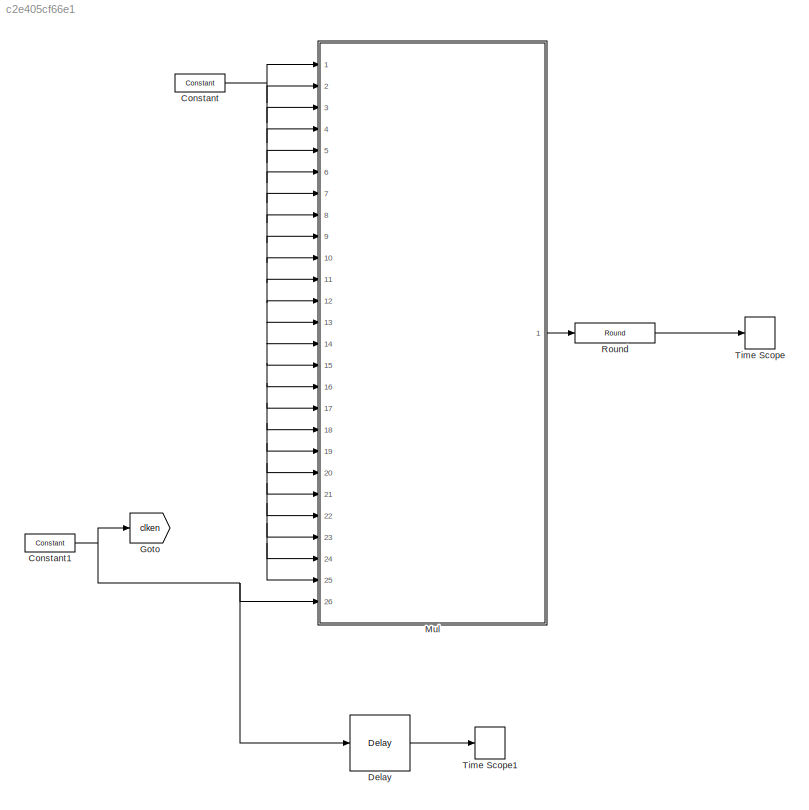
MODEL slx_c2e405cf66e1
KIND model
CONFIG AbsTol = auto
CONFIG FixedStep = auto
CONFIG InitFcn = %% DSPBuilder Start\nalt_dspbuilder_update_model(bdroot)\n%% DSPBuilder End\n
CONFIG MaxStep = auto
CONFIG MinStep = auto
CONFIG RelTol = 1e-3
CONFIG SampleTimeConstraint = Unconstrained
CONFIG Solver = ode45
CONFIG SolverMode = Auto
CONFIG SolverName = ode45
CONFIG StartTime = 0.0
CONFIG StopTime = 25
BLOCK [Reference] Constant  REF=allblocks_alteradspbuilder2/Constant
  BusType = Unsigned Integer
  Ports = [0, 1]
  SourceBlock = allblocks_alteradspbuilder2/Constant
  SourceType = Constant AlteraBlockset
  SpecifyClock = off
  allowFloatingPointOverride = on
  bwl = 8
  bwr = 0
  logFile = <userpath>\Desktop\final_sift_fpga\tb_test1\test1_Constant.fixedpointlog
  logOutputs = off
  mask_cst = 1
  roundMode = Truncate
  satMode = Wrap
BLOCK [Reference] Constant1  REF=allblocks_alteradspbuilder2/Constant
  BusType = Single Bit
  Ports = [0, 1]
  SourceBlock = allblocks_alteradspbuilder2/Constant
  SourceType = Constant AlteraBlockset
  SpecifyClock = off
  allowFloatingPointOverride = on
  bwl = 8
  bwr = 0
  logFile = <userpath>\Desktop\final_sift_fpga\tb_test1\test1_Constant1.fixedpointlog
  logOutputs = off
  mask_cst = 1
  roundMode = Truncate
  satMode = Wrap
BLOCK [Reference] Delay  REF=allblocks_alteradspbuilder2/Delay
  ClockPhase = 1
  Ports = [1, 1]
  SourceBlock = allblocks_alteradspbuilder2/Delay
  SourceType = Delay AlteraBlockset
  allowFloatingPointOverride = on
  logFile = <userpath>\Desktop\final_sift_fpga\tb_test1\test1_Delay.fixedpointlog
  logOutputs = off
  pipeline = 1
  pipeline_display = 1
  reset_value = 1
  use_ena = off
  use_init = off
  use_sclr = off
BLOCK [Goto] Goto
  GotoTag = clken
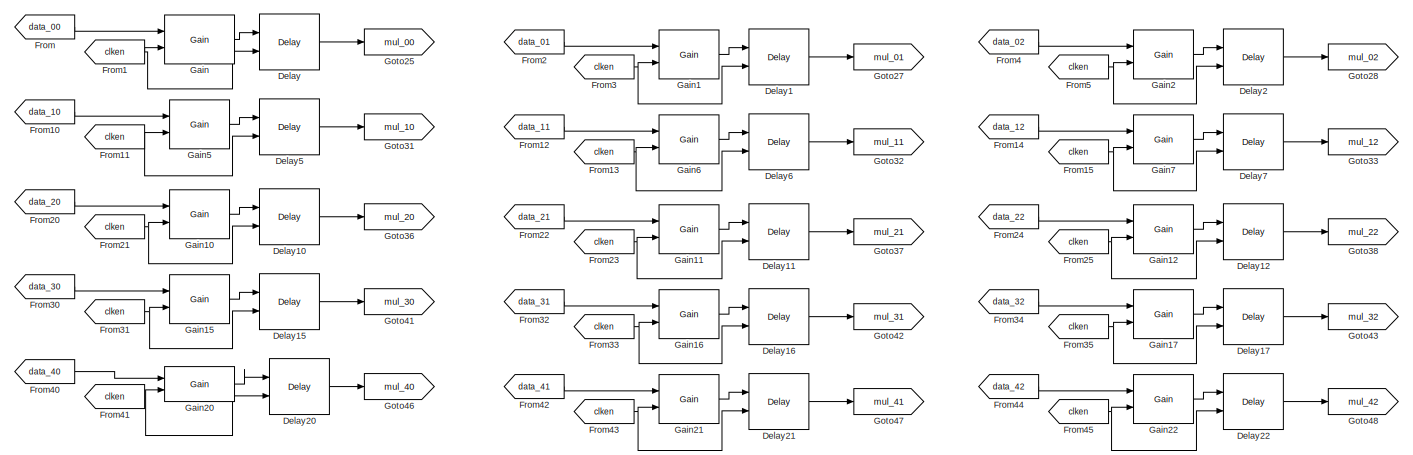
[diagram: Mul - part 1/4, top center region]
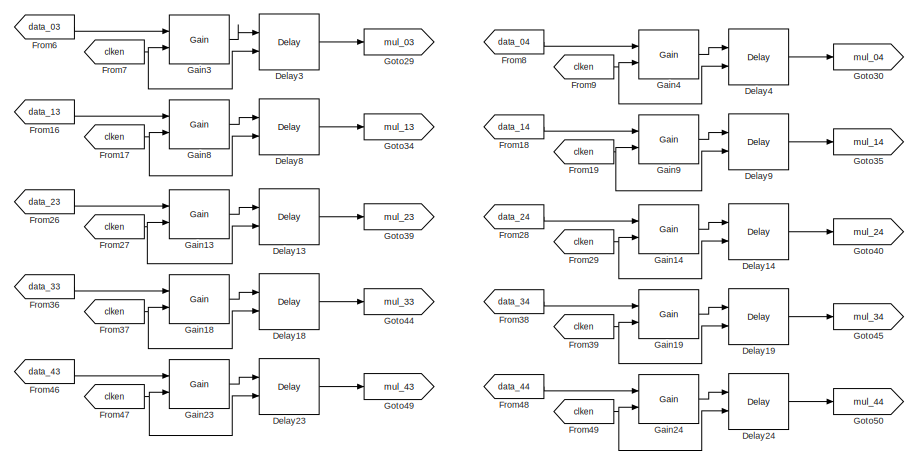
[diagram: Mul - part 2/4, top right region]
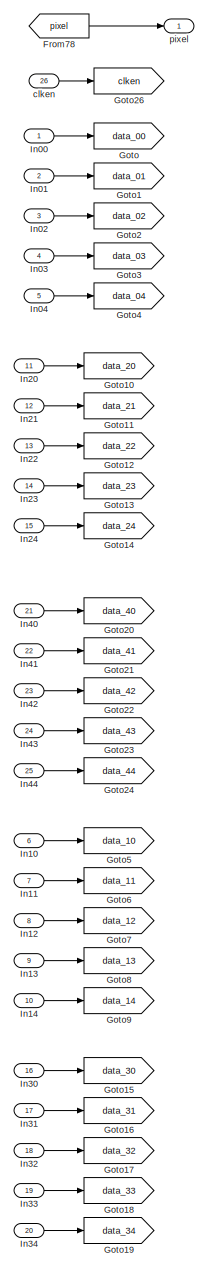
[diagram: Mul - part 3/4, left side, full height]
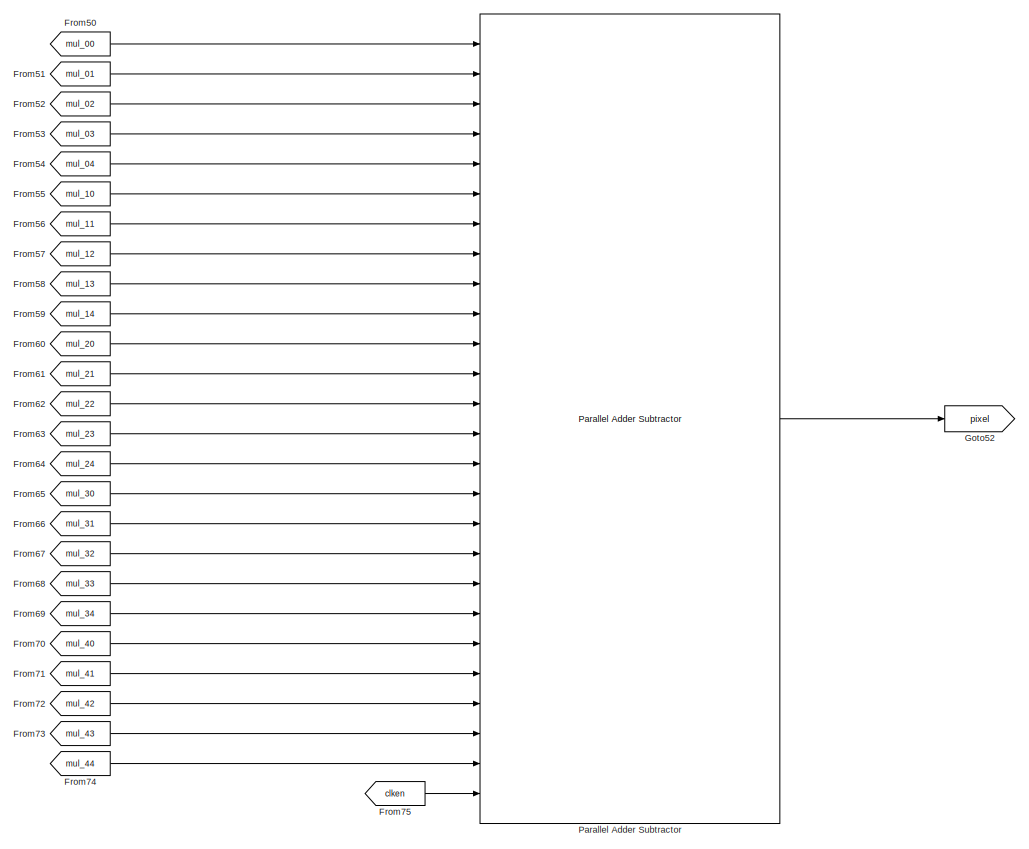
[diagram: Mul - part 4/4, bottom left region]
BLOCK [SubSystem] Mul
  Ports = [26, 1]
  RequestExecContextInheritance = off
BLOCK [Reference] Mul/Delay  REF=allblocks_alteradspbuilder2/Delay
  ClockPhase = 1
  Ports = [2, 1]
  SourceBlock = allblocks_alteradspbuilder2/Delay
  SourceType = Delay AlteraBlockset
  allowFloatingPointOverride = on
  logFile = <userpath>\Desktop\final_sift_fpga\tb_test1\test1_Mul_Delay.fixedpointlog
  logOutputs = off
  pipeline = 1
  pipeline_display = 1
  reset_value = 1
  use_ena = on
  use_init = off
  use_sclr = off
BLOCK [Reference] Mul/Delay1  REF=allblocks_alteradspbuilder2/Delay
  ClockPhase = 1
  Ports = [2, 1]
  SourceBlock = allblocks_alteradspbuilder2/Delay
  SourceType = Delay AlteraBlockset
  allowFloatingPointOverride = on
  logFile = <userpath>\Desktop\final_sift_fpga\tb_test1\test1_Mul_Delay1.fixedpointlog
  logOutputs = off
  pipeline = 1
  pipeline_display = 1
  reset_value = 1
  use_ena = on
  use_init = off
  use_sclr = off
BLOCK [Reference] Mul/Delay10  REF=allblocks_alteradspbuilder2/Delay
  ClockPhase = 1
  Ports = [2, 1]
  SourceBlock = allblocks_alteradspbuilder2/Delay
  SourceType = Delay AlteraBlockset
  allowFloatingPointOverride = on
  logFile = <userpath>\Desktop\final_sift_fpga\tb_test1\test1_Mul_Delay10.fixedpointlog
  logOutputs = off
  pipeline = 1
  pipeline_display = 1
  reset_value = 1
  use_ena = on
  use_init = off
  use_sclr = off
BLOCK [Reference] Mul/Delay11  REF=allblocks_alteradspbuilder2/Delay
  ClockPhase = 1
  Ports = [2, 1]
  SourceBlock = allblocks_alteradspbuilder2/Delay
  SourceType = Delay AlteraBlockset
  allowFloatingPointOverride = on
  logFile = <userpath>\Desktop\final_sift_fpga\tb_test1\test1_Mul_Delay11.fixedpointlog
  logOutputs = off
  pipeline = 1
  pipeline_display = 1
  reset_value = 1
  use_ena = on
  use_init = off
  use_sclr = off
BLOCK [Reference] Mul/Delay12  REF=allblocks_alteradspbuilder2/Delay
  ClockPhase = 1
  Ports = [2, 1]
  SourceBlock = allblocks_alteradspbuilder2/Delay
  SourceType = Delay AlteraBlockset
  allowFloatingPointOverride = on
  logFile = <userpath>\Desktop\final_sift_fpga\tb_test1\test1_Mul_Delay12.fixedpointlog
  logOutputs = off
  pipeline = 1
  pipeline_display = 1
  reset_value = 1
  use_ena = on
  use_init = off
  use_sclr = off
BLOCK [Reference] Mul/Delay13  REF=allblocks_alteradspbuilder2/Delay
  ClockPhase = 1
  Ports = [2, 1]
  SourceBlock = allblocks_alteradspbuilder2/Delay
  SourceType = Delay AlteraBlockset
  allowFloatingPointOverride = on
  logFile = <userpath>\Desktop\final_sift_fpga\tb_test1\test1_Mul_Delay13.fixedpointlog
  logOutputs = off
  pipeline = 1
  pipeline_display = 1
  reset_value = 1
  use_ena = on
  use_init = off
  use_sclr = off
BLOCK [Reference] Mul/Delay14  REF=allblocks_alteradspbuilder2/Delay
  ClockPhase = 1
  Ports = [2, 1]
  SourceBlock = allblocks_alteradspbuilder2/Delay
  SourceType = Delay AlteraBlockset
  allowFloatingPointOverride = on
  logFile = <userpath>\Desktop\final_sift_fpga\tb_test1\test1_Mul_Delay14.fixedpointlog
  logOutputs = off
  pipeline = 1
  pipeline_display = 1
  reset_value = 1
  use_ena = on
  use_init = off
  use_sclr = off
BLOCK [Reference] Mul/Delay15  REF=allblocks_alteradspbuilder2/Delay
  ClockPhase = 1
  Ports = [2, 1]
  SourceBlock = allblocks_alteradspbuilder2/Delay
  SourceType = Delay AlteraBlockset
  allowFloatingPointOverride = on
  logFile = <userpath>\Desktop\final_sift_fpga\tb_test1\test1_Mul_Delay15.fixedpointlog
  logOutputs = off
  pipeline = 1
  pipeline_display = 1
  reset_value = 1
  use_ena = on
  use_init = off
  use_sclr = off
BLOCK [Reference] Mul/Delay16  REF=allblocks_alteradspbuilder2/Delay
  ClockPhase = 1
  Ports = [2, 1]
  SourceBlock = allblocks_alteradspbuilder2/Delay
  SourceType = Delay AlteraBlockset
  allowFloatingPointOverride = on
  logFile = <userpath>\Desktop\final_sift_fpga\tb_test1\test1_Mul_Delay16.fixedpointlog
  logOutputs = off
  pipeline = 1
  pipeline_display = 1
  reset_value = 1
  use_ena = on
  use_init = off
  use_sclr = off
BLOCK [Reference] Mul/Delay17  REF=allblocks_alteradspbuilder2/Delay
  ClockPhase = 1
  Ports = [2, 1]
  SourceBlock = allblocks_alteradspbuilder2/Delay
  SourceType = Delay AlteraBlockset
  allowFloatingPointOverride = on
  logFile = <userpath>\Desktop\final_sift_fpga\tb_test1\test1_Mul_Delay17.fixedpointlog
  logOutputs = off
  pipeline = 1
  pipeline_display = 1
  reset_value = 1
  use_ena = on
  use_init = off
  use_sclr = off
BLOCK [Reference] Mul/Delay18  REF=allblocks_alteradspbuilder2/Delay
  ClockPhase = 1
  Ports = [2, 1]
  SourceBlock = allblocks_alteradspbuilder2/Delay
  SourceType = Delay AlteraBlockset
  allowFloatingPointOverride = on
  logFile = <userpath>\Desktop\final_sift_fpga\tb_test1\test1_Mul_Delay18.fixedpointlog
  logOutputs = off
  pipeline = 1
  pipeline_display = 1
  reset_value = 1
  use_ena = on
  use_init = off
  use_sclr = off
BLOCK [Reference] Mul/Delay19  REF=allblocks_alteradspbuilder2/Delay
  ClockPhase = 1
  Ports = [2, 1]
  SourceBlock = allblocks_alteradspbuilder2/Delay
  SourceType = Delay AlteraBlockset
  allowFloatingPointOverride = on
  logFile = <userpath>\Desktop\final_sift_fpga\tb_test1\test1_Mul_Delay19.fixedpointlog
  logOutputs = off
  pipeline = 1
  pipeline_display = 1
  reset_value = 1
  use_ena = on
  use_init = off
  use_sclr = off
BLOCK [Reference] Mul/Delay2  REF=allblocks_alteradspbuilder2/Delay
  ClockPhase = 1
  Ports = [2, 1]
  SourceBlock = allblocks_alteradspbuilder2/Delay
  SourceType = Delay AlteraBlockset
  allowFloatingPointOverride = on
  logFile = <userpath>\Desktop\final_sift_fpga\tb_test1\test1_Mul_Delay2.fixedpointlog
  logOutputs = off
  pipeline = 1
  pipeline_display = 1
  reset_value = 1
  use_ena = on
  use_init = off
  use_sclr = off
BLOCK [Reference] Mul/Delay20  REF=allblocks_alteradspbuilder2/Delay
  ClockPhase = 1
  Ports = [2, 1]
  SourceBlock = allblocks_alteradspbuilder2/Delay
  SourceType = Delay AlteraBlockset
  allowFloatingPointOverride = on
  logFile = <userpath>\Desktop\final_sift_fpga\tb_test1\test1_Mul_Delay20.fixedpointlog
  logOutputs = off
  pipeline = 1
  pipeline_display = 1
  reset_value = 1
  use_ena = on
  use_init = off
  use_sclr = off
BLOCK [Reference] Mul/Delay21  REF=allblocks_alteradspbuilder2/Delay
  ClockPhase = 1
  Ports = [2, 1]
  SourceBlock = allblocks_alteradspbuilder2/Delay
  SourceType = Delay AlteraBlockset
  allowFloatingPointOverride = on
  logFile = <userpath>\Desktop\final_sift_fpga\tb_test1\test1_Mul_Delay21.fixedpointlog
  logOutputs = off
  pipeline = 1
  pipeline_display = 1
  reset_value = 1
  use_ena = on
  use_init = off
  use_sclr = off
BLOCK [Reference] Mul/Delay22  REF=allblocks_alteradspbuilder2/Delay
  ClockPhase = 1
  Ports = [2, 1]
  SourceBlock = allblocks_alteradspbuilder2/Delay
  SourceType = Delay AlteraBlockset
  allowFloatingPointOverride = on
  logFile = <userpath>\Desktop\final_sift_fpga\tb_test1\test1_Mul_Delay22.fixedpointlog
  logOutputs = off
  pipeline = 1
  pipeline_display = 1
  reset_value = 1
  use_ena = on
  use_init = off
  use_sclr = off
BLOCK [Reference] Mul/Delay23  REF=allblocks_alteradspbuilder2/Delay
  ClockPhase = 1
  Ports = [2, 1]
  SourceBlock = allblocks_alteradspbuilder2/Delay
  SourceType = Delay AlteraBlockset
  allowFloatingPointOverride = on
  logFile = <userpath>\Desktop\final_sift_fpga\tb_test1\test1_Mul_Delay23.fixedpointlog
  logOutputs = off
  pipeline = 1
  pipeline_display = 1
  reset_value = 1
  use_ena = on
  use_init = off
  use_sclr = off
BLOCK [Reference] Mul/Delay24  REF=allblocks_alteradspbuilder2/Delay
  ClockPhase = 1
  Ports = [2, 1]
  SourceBlock = allblocks_alteradspbuilder2/Delay
  SourceType = Delay AlteraBlockset
  allowFloatingPointOverride = on
  logFile = <userpath>\Desktop\final_sift_fpga\tb_test1\test1_Mul_Delay24.fixedpointlog
  logOutputs = off
  pipeline = 1
  pipeline_display = 1
  reset_value = 1
  use_ena = on
  use_init = off
  use_sclr = off
BLOCK [Reference] Mul/Delay3  REF=allblocks_alteradspbuilder2/Delay
  ClockPhase = 1
  Ports = [2, 1]
  SourceBlock = allblocks_alteradspbuilder2/Delay
  SourceType = Delay AlteraBlockset
  allowFloatingPointOverride = on
  logFile = <userpath>\Desktop\final_sift_fpga\tb_test1\test1_Mul_Delay3.fixedpointlog
  logOutputs = off
  pipeline = 1
  pipeline_display = 1
  reset_value = 1
  use_ena = on
  use_init = off
  use_sclr = off
BLOCK [Reference] Mul/Delay4  REF=allblocks_alteradspbuilder2/Delay
  ClockPhase = 1
  Ports = [2, 1]
  SourceBlock = allblocks_alteradspbuilder2/Delay
  SourceType = Delay AlteraBlockset
  allowFloatingPointOverride = on
  logFile = <userpath>\Desktop\final_sift_fpga\tb_test1\test1_Mul_Delay4.fixedpointlog
  logOutputs = off
  pipeline = 1
  pipeline_display = 1
  reset_value = 1
  use_ena = on
  use_init = off
  use_sclr = off
BLOCK [Reference] Mul/Delay5  REF=allblocks_alteradspbuilder2/Delay
  ClockPhase = 1
  Ports = [2, 1]
  SourceBlock = allblocks_alteradspbuilder2/Delay
  SourceType = Delay AlteraBlockset
  allowFloatingPointOverride = on
  logFile = <userpath>\Desktop\final_sift_fpga\tb_test1\test1_Mul_Delay5.fixedpointlog
  logOutputs = off
  pipeline = 1
  pipeline_display = 1
  reset_value = 1
  use_ena = on
  use_init = off
  use_sclr = off
BLOCK [Reference] Mul/Delay6  REF=allblocks_alteradspbuilder2/Delay
  ClockPhase = 1
  Ports = [2, 1]
  SourceBlock = allblocks_alteradspbuilder2/Delay
  SourceType = Delay AlteraBlockset
  allowFloatingPointOverride = on
  logFile = <userpath>\Desktop\final_sift_fpga\tb_test1\test1_Mul_Delay6.fixedpointlog
  logOutputs = off
  pipeline = 1
  pipeline_display = 1
  reset_value = 1
  use_ena = on
  use_init = off
  use_sclr = off
BLOCK [Reference] Mul/Delay7  REF=allblocks_alteradspbuilder2/Delay
  ClockPhase = 1
  Ports = [2, 1]
  SourceBlock = allblocks_alteradspbuilder2/Delay
  SourceType = Delay AlteraBlockset
  allowFloatingPointOverride = on
  logFile = <userpath>\Desktop\final_sift_fpga\tb_test1\test1_Mul_Delay7.fixedpointlog
  logOutputs = off
  pipeline = 1
  pipeline_display = 1
  reset_value = 1
  use_ena = on
  use_init = off
  use_sclr = off
BLOCK [Reference] Mul/Delay8  REF=allblocks_alteradspbuilder2/Delay
  ClockPhase = 1
  Ports = [2, 1]
  SourceBlock = allblocks_alteradspbuilder2/Delay
  SourceType = Delay AlteraBlockset
  allowFloatingPointOverride = on
  logFile = <userpath>\Desktop\final_sift_fpga\tb_test1\test1_Mul_Delay8.fixedpointlog
  logOutputs = off
  pipeline = 1
  pipeline_display = 1
  reset_value = 1
  use_ena = on
  use_init = off
  use_sclr = off
BLOCK [Reference] Mul/Delay9  REF=allblocks_alteradspbuilder2/Delay
  ClockPhase = 1
  Ports = [2, 1]
  SourceBlock = allblocks_alteradspbuilder2/Delay
  SourceType = Delay AlteraBlockset
  allowFloatingPointOverride = on
  logFile = <userpath>\Desktop\final_sift_fpga\tb_test1\test1_Mul_Delay9.fixedpointlog
  logOutputs = off
  pipeline = 1
  pipeline_display = 1
  reset_value = 1
  use_ena = on
  use_init = off
  use_sclr = off
BLOCK [From] Mul/From
  GotoTag = data_00
BLOCK [From] Mul/From1
  GotoTag = clken
BLOCK [From] Mul/From10
  GotoTag = data_10
BLOCK [From] Mul/From11
  GotoTag = clken
BLOCK [From] Mul/From12
  GotoTag = data_11
BLOCK [From] Mul/From13
  GotoTag = clken
BLOCK [From] Mul/From14
  GotoTag = data_12
BLOCK [From] Mul/From15
  GotoTag = clken
BLOCK [From] Mul/From16
  GotoTag = data_13
BLOCK [From] Mul/From17
  GotoTag = clken
BLOCK [From] Mul/From18
  GotoTag = data_14
BLOCK [From] Mul/From19
  GotoTag = clken
BLOCK [From] Mul/From2
  GotoTag = data_01
BLOCK [From] Mul/From20
  GotoTag = data_20
BLOCK [From] Mul/From21
  GotoTag = clken
BLOCK [From] Mul/From22
  GotoTag = data_21
BLOCK [From] Mul/From23
  GotoTag = clken
BLOCK [From] Mul/From24
  GotoTag = data_22
BLOCK [From] Mul/From25
  GotoTag = clken
BLOCK [From] Mul/From26
  GotoTag = data_23
BLOCK [From] Mul/From27
  GotoTag = clken
BLOCK [From] Mul/From28
  GotoTag = data_24
BLOCK [From] Mul/From29
  GotoTag = clken
BLOCK [From] Mul/From3
  GotoTag = clken
BLOCK [From] Mul/From30
  GotoTag = data_30
BLOCK [From] Mul/From31
  GotoTag = clken
BLOCK [From] Mul/From32
  GotoTag = data_31
BLOCK [From] Mul/From33
  GotoTag = clken
BLOCK [From] Mul/From34
  GotoTag = data_32
BLOCK [From] Mul/From35
  GotoTag = clken
BLOCK [From] Mul/From36
  GotoTag = data_33
BLOCK [From] Mul/From37
  GotoTag = clken
BLOCK [From] Mul/From38
  GotoTag = data_34
BLOCK [From] Mul/From39
  GotoTag = clken
BLOCK [From] Mul/From4
  GotoTag = data_02
BLOCK [From] Mul/From40
  GotoTag = data_40
BLOCK [From] Mul/From41
  GotoTag = clken
BLOCK [From] Mul/From42
  GotoTag = data_41
BLOCK [From] Mul/From43
  GotoTag = clken
BLOCK [From] Mul/From44
  GotoTag = data_42
BLOCK [From] Mul/From45
  GotoTag = clken
BLOCK [From] Mul/From46
  GotoTag = data_43
BLOCK [From] Mul/From47
  GotoTag = clken
BLOCK [From] Mul/From48
  GotoTag = data_44
BLOCK [From] Mul/From49
  GotoTag = clken
BLOCK [From] Mul/From5
  GotoTag = clken
BLOCK [From] Mul/From50
  GotoTag = mul_00
BLOCK [From] Mul/From51
  GotoTag = mul_01
BLOCK [From] Mul/From52
  GotoTag = mul_02
BLOCK [From] Mul/From53
  GotoTag = mul_03
BLOCK [From] Mul/From54
  GotoTag = mul_04
BLOCK [From] Mul/From55
  GotoTag = mul_10
BLOCK [From] Mul/From56
  GotoTag = mul_11
BLOCK [From] Mul/From57
  GotoTag = mul_12
BLOCK [From] Mul/From58
  GotoTag = mul_13
BLOCK [From] Mul/From59
  GotoTag = mul_14
BLOCK [From] Mul/From6
  GotoTag = data_03
BLOCK [From] Mul/From60
  GotoTag = mul_20
BLOCK [From] Mul/From61
  GotoTag = mul_21
BLOCK [From] Mul/From62
  GotoTag = mul_22
BLOCK [From] Mul/From63
  GotoTag = mul_23
BLOCK [From] Mul/From64
  GotoTag = mul_24
BLOCK [From] Mul/From65
  GotoTag = mul_30
BLOCK [From] Mul/From66
  GotoTag = mul_31
BLOCK [From] Mul/From67
  GotoTag = mul_32
BLOCK [From] Mul/From68
  GotoTag = mul_33
BLOCK [From] Mul/From69
  GotoTag = mul_34
BLOCK [From] Mul/From7
  GotoTag = clken
BLOCK [From] Mul/From70
  GotoTag = mul_40
BLOCK [From] Mul/From71
  GotoTag = mul_41
BLOCK [From] Mul/From72
  GotoTag = mul_42
BLOCK [From] Mul/From73
  GotoTag = mul_43
BLOCK [From] Mul/From74
  GotoTag = mul_44
BLOCK [From] Mul/From75
  GotoTag = clken
BLOCK [From] Mul/From78
  GotoTag = pixel
BLOCK [From] Mul/From8
  GotoTag = data_04
BLOCK [From] Mul/From9
  GotoTag = clken
BLOCK [Reference] Mul/Gain  REF=allblocks_alteradspbuilder2/Gain
  BusType = Unsigned Fractional
  MaskValue = 1
  Ports = [2, 1]
  SourceBlock = allblocks_alteradspbuilder2/Gain
  SourceType = Gain AlteraBlockset
  allowFloatingPointOverride = on
  bwl = 8
  bwr = 16
  logFile = <userpath>\Desktop\final_sift_fpga\tb_test1\test1_Mul_Gain.fixedpointlog
  logOutputs = off
  lpm = off
  pipeline = 16
  pipeline_display = 16
  use_aclr = off
  use_ena = on
  vgain = 0.0098
BLOCK [Reference] Mul/Gain1  REF=allblocks_alteradspbuilder2/Gain
  BusType = Unsigned Fractional
  MaskValue = 1
  Ports = [2, 1]
  SourceBlock = allblocks_alteradspbuilder2/Gain
  SourceType = Gain AlteraBlockset
  allowFloatingPointOverride = on
  bwl = 8
  bwr = 16
  logFile = <userpath>\Desktop\final_sift_fpga\tb_test1\test1_Mul_Gain1.fixedpointlog
  logOutputs = off
  lpm = off
  pipeline = 16
  pipeline_display = 16
  use_aclr = off
  use_ena = on
  vgain = 0.0237
BLOCK [Reference] Mul/Gain10  REF=allblocks_alteradspbuilder2/Gain
  BusType = Unsigned Fractional
  MaskValue = 1
  Ports = [2, 1]
  SourceBlock = allblocks_alteradspbuilder2/Gain
  SourceType = Gain AlteraBlockset
  allowFloatingPointOverride = on
  bwl = 8
  bwr = 16
  logFile = <userpath>\Desktop\final_sift_fpga\tb_test1\test1_Mul_Gain10.fixedpointlog
  logOutputs = off
  lpm = off
  pipeline = 16
  pipeline_display = 16
  use_aclr = off
  use_ena = on
  vgain = 0.0319
BLOCK [Reference] Mul/Gain11  REF=allblocks_alteradspbuilder2/Gain
  BusType = Unsigned Fractional
  MaskValue = 1
  Ports = [2, 1]
  SourceBlock = allblocks_alteradspbuilder2/Gain
  SourceType = Gain AlteraBlockset
  allowFloatingPointOverride = on
  bwl = 8
  bwr = 16
  logFile = <userpath>\Desktop\final_sift_fpga\tb_test1\test1_Mul_Gain11.fixedpointlog
  logOutputs = off
  lpm = off
  pipeline = 16
  pipeline_display = 16
  use_aclr = off
  use_ena = on
  vgain = 0.0774
BLOCK [Reference] Mul/Gain12  REF=allblocks_alteradspbuilder2/Gain
  BusType = Unsigned Fractional
  MaskValue = 1
  Ports = [2, 1]
  SourceBlock = allblocks_alteradspbuilder2/Gain
  SourceType = Gain AlteraBlockset
  allowFloatingPointOverride = on
  bwl = 8
  bwr = 16
  logFile = <userpath>\Desktop\final_sift_fpga\tb_test1\test1_Mul_Gain12.fixedpointlog
  logOutputs = off
  lpm = off
  pipeline = 16
  pipeline_display = 16
  use_aclr = off
  use_ena = on
  vgain = 0.1040
BLOCK [Reference] Mul/Gain13  REF=allblocks_alteradspbuilder2/Gain
  BusType = Unsigned Fractional
  MaskValue = 1
  Ports = [2, 1]
  SourceBlock = allblocks_alteradspbuilder2/Gain
  SourceType = Gain AlteraBlockset
  allowFloatingPointOverride = on
  bwl = 8
  bwr = 16
  logFile = <userpath>\Desktop\final_sift_fpga\tb_test1\test1_Mul_Gain13.fixedpointlog
  logOutputs = off
  lpm = off
  pipeline = 16
  pipeline_display = 16
  use_aclr = off
  use_ena = on
  vgain = 0.0774
BLOCK [Reference] Mul/Gain14  REF=allblocks_alteradspbuilder2/Gain
  BusType = Unsigned Fractional
  MaskValue = 1
  Ports = [2, 1]
  SourceBlock = allblocks_alteradspbuilder2/Gain
  SourceType = Gain AlteraBlockset
  allowFloatingPointOverride = on
  bwl = 8
  bwr = 16
  logFile = <userpath>\Desktop\final_sift_fpga\tb_test1\test1_Mul_Gain14.fixedpointlog
  logOutputs = off
  lpm = off
  pipeline = 16
  pipeline_display = 16
  use_aclr = off
  use_ena = on
  vgain = 0.0319
BLOCK [Reference] Mul/Gain15  REF=allblocks_alteradspbuilder2/Gain
  BusType = Unsigned Fractional
  MaskValue = 1
  Ports = [2, 1]
  SourceBlock = allblocks_alteradspbuilder2/Gain
  SourceType = Gain AlteraBlockset
  allowFloatingPointOverride = on
  bwl = 8
  bwr = 16
  logFile = <userpath>\Desktop\final_sift_fpga\tb_test1\test1_Mul_Gain15.fixedpointlog
  logOutputs = off
  lpm = off
  pipeline = 16
  pipeline_display = 16
  use_aclr = off
  use_ena = on
  vgain = 0.0237
BLOCK [Reference] Mul/Gain16  REF=allblocks_alteradspbuilder2/Gain
  BusType = Unsigned Fractional
  MaskValue = 1
  Ports = [2, 1]
  SourceBlock = allblocks_alteradspbuilder2/Gain
  SourceType = Gain AlteraBlockset
  allowFloatingPointOverride = on
  bwl = 8
  bwr = 16
  logFile = <userpath>\Desktop\final_sift_fpga\tb_test1\test1_Mul_Gain16.fixedpointlog
  logOutputs = off
  lpm = off
  pipeline = 16
  pipeline_display = 16
  use_aclr = off
  use_ena = on
  vgain = 0.0576
BLOCK [Reference] Mul/Gain17  REF=allblocks_alteradspbuilder2/Gain
  BusType = Unsigned Fractional
  MaskValue = 1
  Ports = [2, 1]
  SourceBlock = allblocks_alteradspbuilder2/Gain
  SourceType = Gain AlteraBlockset
  allowFloatingPointOverride = on
  bwl = 8
  bwr = 16
  logFile = <userpath>\Desktop\final_sift_fpga\tb_test1\test1_Mul_Gain17.fixedpointlog
  logOutputs = off
  lpm = off
  pipeline = 16
  pipeline_display = 16
  use_aclr = off
  use_ena = on
  vgain = 0.0774
BLOCK [Reference] Mul/Gain18  REF=allblocks_alteradspbuilder2/Gain
  BusType = Unsigned Fractional
  MaskValue = 1
  Ports = [2, 1]
  SourceBlock = allblocks_alteradspbuilder2/Gain
  SourceType = Gain AlteraBlockset
  allowFloatingPointOverride = on
  bwl = 8
  bwr = 16
  logFile = <userpath>\Desktop\final_sift_fpga\tb_test1\test1_Mul_Gain18.fixedpointlog
  logOutputs = off
  lpm = off
  pipeline = 16
  pipeline_display = 16
  use_aclr = off
  use_ena = on
  vgain = 0.0576
BLOCK [Reference] Mul/Gain19  REF=allblocks_alteradspbuilder2/Gain
  BusType = Unsigned Fractional
  MaskValue = 1
  Ports = [2, 1]
  SourceBlock = allblocks_alteradspbuilder2/Gain
  SourceType = Gain AlteraBlockset
  allowFloatingPointOverride = on
  bwl = 8
  bwr = 16
  logFile = <userpath>\Desktop\final_sift_fpga\tb_test1\test1_Mul_Gain19.fixedpointlog
  logOutputs = off
  lpm = off
  pipeline = 16
  pipeline_display = 16
  use_aclr = off
  use_ena = on
  vgain = 0.0237
BLOCK [Reference] Mul/Gain2  REF=allblocks_alteradspbuilder2/Gain
  BusType = Unsigned Fractional
  MaskValue = 1
  Ports = [2, 1]
  SourceBlock = allblocks_alteradspbuilder2/Gain
  SourceType = Gain AlteraBlockset
  allowFloatingPointOverride = on
  bwl = 8
  bwr = 16
  logFile = <userpath>\Desktop\final_sift_fpga\tb_test1\test1_Mul_Gain2.fixedpointlog
  logOutputs = off
  lpm = off
  pipeline = 16
  pipeline_display = 16
  use_aclr = off
  use_ena = on
  vgain = 0.0319
BLOCK [Reference] Mul/Gain20  REF=allblocks_alteradspbuilder2/Gain
  BusType = Unsigned Fractional
  MaskValue = 1
  Ports = [2, 1]
  SourceBlock = allblocks_alteradspbuilder2/Gain
  SourceType = Gain AlteraBlockset
  allowFloatingPointOverride = on
  bwl = 8
  bwr = 16
  logFile = <userpath>\Desktop\final_sift_fpga\tb_test1\test1_Mul_Gain20.fixedpointlog
  logOutputs = off
  lpm = off
  pipeline = 16
  pipeline_display = 16
  use_aclr = off
  use_ena = on
  vgain = 0.0098
BLOCK [Reference] Mul/Gain21  REF=allblocks_alteradspbuilder2/Gain
  BusType = Unsigned Fractional
  MaskValue = 1
  Ports = [2, 1]
  SourceBlock = allblocks_alteradspbuilder2/Gain
  SourceType = Gain AlteraBlockset
  allowFloatingPointOverride = on
  bwl = 8
  bwr = 16
  logFile = <userpath>\Desktop\final_sift_fpga\tb_test1\test1_Mul_Gain21.fixedpointlog
  logOutputs = off
  lpm = off
  pipeline = 16
  pipeline_display = 16
  use_aclr = off
  use_ena = on
  vgain = 0.0237
BLOCK [Reference] Mul/Gain22  REF=allblocks_alteradspbuilder2/Gain
  BusType = Unsigned Fractional
  MaskValue = 1
  Ports = [2, 1]
  SourceBlock = allblocks_alteradspbuilder2/Gain
  SourceType = Gain AlteraBlockset
  allowFloatingPointOverride = on
  bwl = 8
  bwr = 16
  logFile = <userpath>\Desktop\final_sift_fpga\tb_test1\test1_Mul_Gain22.fixedpointlog
  logOutputs = off
  lpm = off
  pipeline = 16
  pipeline_display = 16
  use_aclr = off
  use_ena = on
  vgain = 0.0319
BLOCK [Reference] Mul/Gain23  REF=allblocks_alteradspbuilder2/Gain
  BusType = Unsigned Fractional
  MaskValue = 1
  Ports = [2, 1]
  SourceBlock = allblocks_alteradspbuilder2/Gain
  SourceType = Gain AlteraBlockset
  allowFloatingPointOverride = on
  bwl = 8
  bwr = 16
  logFile = <userpath>\Desktop\final_sift_fpga\tb_test1\test1_Mul_Gain23.fixedpointlog
  logOutputs = off
  lpm = off
  pipeline = 16
  pipeline_display = 16
  use_aclr = off
  use_ena = on
  vgain = 0.0237
BLOCK [Reference] Mul/Gain24  REF=allblocks_alteradspbuilder2/Gain
  BusType = Unsigned Fractional
  MaskValue = 1
  Ports = [2, 1]
  SourceBlock = allblocks_alteradspbuilder2/Gain
  SourceType = Gain AlteraBlockset
  allowFloatingPointOverride = on
  bwl = 8
  bwr = 16
  logFile = <userpath>\Desktop\final_sift_fpga\tb_test1\test1_Mul_Gain24.fixedpointlog
  logOutputs = off
  lpm = off
  pipeline = 16
  pipeline_display = 16
  use_aclr = off
  use_ena = on
  vgain = 0.0098
BLOCK [Reference] Mul/Gain3  REF=allblocks_alteradspbuilder2/Gain
  BusType = Unsigned Fractional
  MaskValue = 1
  Ports = [2, 1]
  SourceBlock = allblocks_alteradspbuilder2/Gain
  SourceType = Gain AlteraBlockset
  allowFloatingPointOverride = on
  bwl = 8
  bwr = 16
  logFile = <userpath>\Desktop\final_sift_fpga\tb_test1\test1_Mul_Gain3.fixedpointlog
  logOutputs = off
  lpm = off
  pipeline = 16
  pipeline_display = 16
  use_aclr = off
  use_ena = on
  vgain = 0.0237
BLOCK [Reference] Mul/Gain4  REF=allblocks_alteradspbuilder2/Gain
  BusType = Unsigned Fractional
  MaskValue = 1
  Ports = [2, 1]
  SourceBlock = allblocks_alteradspbuilder2/Gain
  SourceType = Gain AlteraBlockset
  allowFloatingPointOverride = on
  bwl = 8
  bwr = 16
  logFile = <userpath>\Desktop\final_sift_fpga\tb_test1\test1_Mul_Gain4.fixedpointlog
  logOutputs = off
  lpm = off
  pipeline = 16
  pipeline_display = 16
  use_aclr = off
  use_ena = on
  vgain = 0.0098
BLOCK [Reference] Mul/Gain5  REF=allblocks_alteradspbuilder2/Gain
  BusType = Unsigned Fractional
  MaskValue = 1
  Ports = [2, 1]
  SourceBlock = allblocks_alteradspbuilder2/Gain
  SourceType = Gain AlteraBlockset
  allowFloatingPointOverride = on
  bwl = 8
  bwr = 16
  logFile = <userpath>\Desktop\final_sift_fpga\tb_test1\test1_Mul_Gain5.fixedpointlog
  logOutputs = off
  lpm = off
  pipeline = 16
  pipeline_display = 16
  use_aclr = off
  use_ena = on
  vgain = 0.0237
BLOCK [Reference] Mul/Gain6  REF=allblocks_alteradspbuilder2/Gain
  BusType = Unsigned Fractional
  MaskValue = 1
  Ports = [2, 1]
  SourceBlock = allblocks_alteradspbuilder2/Gain
  SourceType = Gain AlteraBlockset
  allowFloatingPointOverride = on
  bwl = 8
  bwr = 16
  logFile = <userpath>\Desktop\final_sift_fpga\tb_test1\test1_Mul_Gain6.fixedpointlog
  logOutputs = off
  lpm = off
  pipeline = 16
  pipeline_display = 16
  use_aclr = off
  use_ena = on
  vgain = 0.0576
BLOCK [Reference] Mul/Gain7  REF=allblocks_alteradspbuilder2/Gain
  BusType = Unsigned Fractional
  MaskValue = 1
  Ports = [2, 1]
  SourceBlock = allblocks_alteradspbuilder2/Gain
  SourceType = Gain AlteraBlockset
  allowFloatingPointOverride = on
  bwl = 8
  bwr = 16
  logFile = <userpath>\Desktop\final_sift_fpga\tb_test1\test1_Mul_Gain7.fixedpointlog
  logOutputs = off
  lpm = off
  pipeline = 16
  pipeline_display = 16
  use_aclr = off
  use_ena = on
  vgain = 0.0774
BLOCK [Reference] Mul/Gain8  REF=allblocks_alteradspbuilder2/Gain
  BusType = Unsigned Fractional
  MaskValue = 1
  Ports = [2, 1]
  SourceBlock = allblocks_alteradspbuilder2/Gain
  SourceType = Gain AlteraBlockset
  allowFloatingPointOverride = on
  bwl = 8
  bwr = 16
  logFile = <userpath>\Desktop\final_sift_fpga\tb_test1\test1_Mul_Gain8.fixedpointlog
  logOutputs = off
  lpm = off
  pipeline = 16
  pipeline_display = 16
  use_aclr = off
  use_ena = on
  vgain = 0.0576
BLOCK [Reference] Mul/Gain9  REF=allblocks_alteradspbuilder2/Gain
  BusType = Unsigned Fractional
  MaskValue = 1
  Ports = [2, 1]
  SourceBlock = allblocks_alteradspbuilder2/Gain
  SourceType = Gain AlteraBlockset
  allowFloatingPointOverride = on
  bwl = 8
  bwr = 16
  logFile = <userpath>\Desktop\final_sift_fpga\tb_test1\test1_Mul_Gain9.fixedpointlog
  logOutputs = off
  lpm = off
  pipeline = 16
  pipeline_display = 16
  use_aclr = off
  use_ena = on
  vgain = 0.0237
BLOCK [Goto] Mul/Goto
  GotoTag = data_00
BLOCK [Goto] Mul/Goto1
  GotoTag = data_01
BLOCK [Goto] Mul/Goto10
  GotoTag = data_20
BLOCK [Goto] Mul/Goto11
  GotoTag = data_21
BLOCK [Goto] Mul/Goto12
  GotoTag = data_22
BLOCK [Goto] Mul/Goto13
  GotoTag = data_23
BLOCK [Goto] Mul/Goto14
  GotoTag = data_24
BLOCK [Goto] Mul/Goto15
  GotoTag = data_30
BLOCK [Goto] Mul/Goto16
  GotoTag = data_31
BLOCK [Goto] Mul/Goto17
  GotoTag = data_32
BLOCK [Goto] Mul/Goto18
  GotoTag = data_33
BLOCK [Goto] Mul/Goto19
  GotoTag = data_34
BLOCK [Goto] Mul/Goto2
  GotoTag = data_02
BLOCK [Goto] Mul/Goto20
  GotoTag = data_40
BLOCK [Goto] Mul/Goto21
  GotoTag = data_41
BLOCK [Goto] Mul/Goto22
  GotoTag = data_42
BLOCK [Goto] Mul/Goto23
  GotoTag = data_43
BLOCK [Goto] Mul/Goto24
  GotoTag = data_44
BLOCK [Goto] Mul/Goto25
  GotoTag = mul_00
BLOCK [Goto] Mul/Goto26
  GotoTag = clken
BLOCK [Goto] Mul/Goto27
  GotoTag = mul_01
BLOCK [Goto] Mul/Goto28
  GotoTag = mul_02
BLOCK [Goto] Mul/Goto29
  GotoTag = mul_03
BLOCK [Goto] Mul/Goto3
  GotoTag = data_03
BLOCK [Goto] Mul/Goto30
  GotoTag = mul_04
BLOCK [Goto] Mul/Goto31
  GotoTag = mul_10
BLOCK [Goto] Mul/Goto32
  GotoTag = mul_11
BLOCK [Goto] Mul/Goto33
  GotoTag = mul_12
BLOCK [Goto] Mul/Goto34
  GotoTag = mul_13
BLOCK [Goto] Mul/Goto35
  GotoTag = mul_14
BLOCK [Goto] Mul/Goto36
  GotoTag = mul_20
BLOCK [Goto] Mul/Goto37
  GotoTag = mul_21
BLOCK [Goto] Mul/Goto38
  GotoTag = mul_22
BLOCK [Goto] Mul/Goto39
  GotoTag = mul_23
BLOCK [Goto] Mul/Goto4
  GotoTag = data_04
BLOCK [Goto] Mul/Goto40
  GotoTag = mul_24
BLOCK [Goto] Mul/Goto41
  GotoTag = mul_30
BLOCK [Goto] Mul/Goto42
  GotoTag = mul_31
BLOCK [Goto] Mul/Goto43
  GotoTag = mul_32
BLOCK [Goto] Mul/Goto44
  GotoTag = mul_33
BLOCK [Goto] Mul/Goto45
  GotoTag = mul_34
BLOCK [Goto] Mul/Goto46
  GotoTag = mul_40
BLOCK [Goto] Mul/Goto47
  GotoTag = mul_41
BLOCK [Goto] Mul/Goto48
  GotoTag = mul_42
BLOCK [Goto] Mul/Goto49
  GotoTag = mul_43
BLOCK [Goto] Mul/Goto5
  GotoTag = data_10
BLOCK [Goto] Mul/Goto50
  GotoTag = mul_44
BLOCK [Goto] Mul/Goto52
  GotoTag = pixel
BLOCK [Goto] Mul/Goto6
  GotoTag = data_11
BLOCK [Goto] Mul/Goto7
  GotoTag = data_12
BLOCK [Goto] Mul/Goto8
  GotoTag = data_13
BLOCK [Goto] Mul/Goto9
  GotoTag = data_14
BLOCK [Inport] Mul/In00
  IconDisplay = Port number
BLOCK [Inport] Mul/In01
  IconDisplay = Port number
  Port = 2
BLOCK [Inport] Mul/In02
  IconDisplay = Port number
  Port = 3
BLOCK [Inport] Mul/In03
  IconDisplay = Port number
  Port = 4
BLOCK [Inport] Mul/In04
  IconDisplay = Port number
  Port = 5
BLOCK [Inport] Mul/In10
  IconDisplay = Port number
  Port = 6
BLOCK [Inport] Mul/In11
  IconDisplay = Port number
  Port = 7
BLOCK [Inport] Mul/In12
  IconDisplay = Port number
  Port = 8
BLOCK [Inport] Mul/In13
  IconDisplay = Port number
  Port = 9
BLOCK [Inport] Mul/In14
  IconDisplay = Port number
  Port = 10
BLOCK [Inport] Mul/In20
  IconDisplay = Port number
  Port = 11
BLOCK [Inport] Mul/In21
  IconDisplay = Port number
  Port = 12
BLOCK [Inport] Mul/In22
  IconDisplay = Port number
  Port = 13
BLOCK [Inport] Mul/In23
  IconDisplay = Port number
  Port = 14
BLOCK [Inport] Mul/In24
  IconDisplay = Port number
  Port = 15
BLOCK [Inport] Mul/In30
  IconDisplay = Port number
  Port = 16
BLOCK [Inport] Mul/In31
  IconDisplay = Port number
  Port = 17
BLOCK [Inport] Mul/In32
  IconDisplay = Port number
  Port = 18
BLOCK [Inport] Mul/In33
  IconDisplay = Port number
  Port = 19
BLOCK [Inport] Mul/In34
  IconDisplay = Port number
  Port = 20
BLOCK [Inport] Mul/In40
  IconDisplay = Port number
  Port = 21
BLOCK [Inport] Mul/In41
  IconDisplay = Port number
  Port = 22
BLOCK [Inport] Mul/In42
  IconDisplay = Port number
  Port = 23
BLOCK [Inport] Mul/In43
  IconDisplay = Port number
  Port = 24
BLOCK [Inport] Mul/In44
  IconDisplay = Port number
  Port = 25
BLOCK [Reference] Mul/Parallel Adder Subtractor  REF=allblocks_alteradspbuilder2/Parallel Adder Subtractor
  Ports = [26, 1]
  SourceBlock = allblocks_alteradspbuilder2/Parallel Adder Subtractor
  SourceType = ParallelAdder AlteraBlockset
  allowFloatingPointOverride = on
  direction = +
  logFile = <userpath>\Desktop\final_sift_fpga\tb_test1\test1_Mul_Parallel+Adder+Subtractor.fixedpointlog
  logOutputs = off
  number_of_inputs = 25
  phase_selection = 1
  pipeline_display = 5
  use_aclr = off
  use_ena = on
  use_pipeline = on
BLOCK [Inport] Mul/clken
  IconDisplay = Port number
  Port = 26
BLOCK [Outport] Mul/pixel
  IconDisplay = Port number
BLOCK [Reference] Round  REF=allblocks_alteradspbuilder2/Round
  BusType = Signed Fractional
  Ports = [1, 1]
  SourceBlock = allblocks_alteradspbuilder2/Round
  SourceType = Round AlteraBlockset
  bitsToRemove = 0
  bwl = 9
  bwr = 16
  pipeline = off
  pipeline_display = 0
  roundMode = TRUNCATE_LOW
  use_aclr = off
  use_ena = off
  userRoundMode = Truncate
BLOCK [TimeScope] Time Scope
  DefaultConfigurationName = spbscopes.TimeScopeBlockCfg
  NumInputPorts = 1
  Ports = [1]
  ScopeSpecificationString = spbscopes.TimeScopeBlockCfg('CurrentConfiguration', extmgr.ConfigurationSet(extmgr.Configuration('Core','General UI',true),extmgr.Configuration('Core','Source UI',true),extmgr.Configuration('Sources','WiredSimulink',true),extmgr.Configuration('Visuals','Time Domain',true,'DisplayPropertyDefaults',struct('MinYLimReal','-0.125029','MaxYLimReal','1.12526','YLabelReal','Amplitude','MinYLimMag','0','Ma...<+1368ch>
  UserDataPersistent = on
BLOCK [TimeScope] Time Scope1
  DefaultConfigurationName = spbscopes.TimeScopeBlockCfg
  NumInputPorts = 1
  Ports = [1]
  ScopeSpecificationString = spbscopes.TimeScopeBlockCfg('CurrentConfiguration', extmgr.ConfigurationSet(extmgr.Configuration('Core','General UI',true),extmgr.Configuration('Core','Source UI',true),extmgr.Configuration('Sources','WiredSimulink',true,'DataLoggingVariableName','ScopeData1'),extmgr.Configuration('Visuals','Time Domain',true,'DisplayPropertyDefaults',struct('MinYLimReal','-0.125','MaxYLimReal','1.125','YLabelReal...<+1367ch>
  UserDataPersistent = on
NET Constant1:1 -> Delay:1, Goto:1, Mul:26
NET Constant:1 -> Mul:1, Mul:10, Mul:11, Mul:12, Mul:13, Mul:14, Mul:15, Mul:16, Mul:17, Mul:18, Mul:19, Mul:2, Mul:20, Mul:21, Mul:22, Mul:23, Mul:24, Mul:25, Mul:3, Mul:4, Mul:5, Mul:6, Mul:7, Mul:8, Mul:9
LINE Delay:1 -> Time Scope1:1
LINE Mul/Delay10:1 -> Mul/Goto36:1
LINE Mul/Delay11:1 -> Mul/Goto37:1
LINE Mul/Delay12:1 -> Mul/Goto38:1
LINE Mul/Delay13:1 -> Mul/Goto39:1
LINE Mul/Delay14:1 -> Mul/Goto40:1
LINE Mul/Delay15:1 -> Mul/Goto41:1
LINE Mul/Delay16:1 -> Mul/Goto42:1
LINE Mul/Delay17:1 -> Mul/Goto43:1
LINE Mul/Delay18:1 -> Mul/Goto44:1
LINE Mul/Delay19:1 -> Mul/Goto45:1
LINE Mul/Delay1:1 -> Mul/Goto27:1
LINE Mul/Delay20:1 -> Mul/Goto46:1
LINE Mul/Delay21:1 -> Mul/Goto47:1
LINE Mul/Delay22:1 -> Mul/Goto48:1
LINE Mul/Delay23:1 -> Mul/Goto49:1
LINE Mul/Delay24:1 -> Mul/Goto50:1
LINE Mul/Delay2:1 -> Mul/Goto28:1
LINE Mul/Delay3:1 -> Mul/Goto29:1
LINE Mul/Delay4:1 -> Mul/Goto30:1
LINE Mul/Delay5:1 -> Mul/Goto31:1
LINE Mul/Delay6:1 -> Mul/Goto32:1
LINE Mul/Delay7:1 -> Mul/Goto33:1
LINE Mul/Delay8:1 -> Mul/Goto34:1
LINE Mul/Delay9:1 -> Mul/Goto35:1
LINE Mul/Delay:1 -> Mul/Goto25:1
LINE Mul/From10:1 -> Mul/Gain5:1
NET Mul/From11:1 -> Mul/Delay5:2, Mul/Gain5:2
LINE Mul/From12:1 -> Mul/Gain6:1
NET Mul/From13:1 -> Mul/Delay6:2, Mul/Gain6:2
LINE Mul/From14:1 -> Mul/Gain7:1
NET Mul/From15:1 -> Mul/Delay7:2, Mul/Gain7:2
LINE Mul/From16:1 -> Mul/Gain8:1
NET Mul/From17:1 -> Mul/Delay8:2, Mul/Gain8:2
LINE Mul/From18:1 -> Mul/Gain9:1
NET Mul/From19:1 -> Mul/Delay9:2, Mul/Gain9:2
NET Mul/From1:1 -> Mul/Delay:2, Mul/Gain:2
LINE Mul/From20:1 -> Mul/Gain10:1
NET Mul/From21:1 -> Mul/Delay10:2, Mul/Gain10:2
LINE Mul/From22:1 -> Mul/Gain11:1
NET Mul/From23:1 -> Mul/Delay11:2, Mul/Gain11:2
LINE Mul/From24:1 -> Mul/Gain12:1
NET Mul/From25:1 -> Mul/Delay12:2, Mul/Gain12:2
LINE Mul/From26:1 -> Mul/Gain13:1
NET Mul/From27:1 -> Mul/Delay13:2, Mul/Gain13:2
LINE Mul/From28:1 -> Mul/Gain14:1
NET Mul/From29:1 -> Mul/Delay14:2, Mul/Gain14:2
LINE Mul/From2:1 -> Mul/Gain1:1
LINE Mul/From30:1 -> Mul/Gain15:1
NET Mul/From31:1 -> Mul/Delay15:2, Mul/Gain15:2
LINE Mul/From32:1 -> Mul/Gain16:1
NET Mul/From33:1 -> Mul/Delay16:2, Mul/Gain16:2
LINE Mul/From34:1 -> Mul/Gain17:1
NET Mul/From35:1 -> Mul/Delay17:2, Mul/Gain17:2
LINE Mul/From36:1 -> Mul/Gain18:1
NET Mul/From37:1 -> Mul/Delay18:2, Mul/Gain18:2
LINE Mul/From38:1 -> Mul/Gain19:1
NET Mul/From39:1 -> Mul/Delay19:2, Mul/Gain19:2
NET Mul/From3:1 -> Mul/Delay1:2, Mul/Gain1:2
LINE Mul/From40:1 -> Mul/Gain20:1
NET Mul/From41:1 -> Mul/Delay20:2, Mul/Gain20:2
LINE Mul/From42:1 -> Mul/Gain21:1
NET Mul/From43:1 -> Mul/Delay21:2, Mul/Gain21:2
LINE Mul/From44:1 -> Mul/Gain22:1
NET Mul/From45:1 -> Mul/Delay22:2, Mul/Gain22:2
LINE Mul/From46:1 -> Mul/Gain23:1
NET Mul/From47:1 -> Mul/Delay23:2, Mul/Gain23:2
LINE Mul/From48:1 -> Mul/Gain24:1
NET Mul/From49:1 -> Mul/Delay24:2, Mul/Gain24:2
LINE Mul/From4:1 -> Mul/Gain2:1
LINE Mul/From50:1 -> Mul/Parallel Adder Subtractor:1
LINE Mul/From51:1 -> Mul/Parallel Adder Subtractor:2
LINE Mul/From52:1 -> Mul/Parallel Adder Subtractor:3
LINE Mul/From53:1 -> Mul/Parallel Adder Subtractor:4
LINE Mul/From54:1 -> Mul/Parallel Adder Subtractor:5
LINE Mul/From55:1 -> Mul/Parallel Adder Subtractor:6
LINE Mul/From56:1 -> Mul/Parallel Adder Subtractor:7
LINE Mul/From57:1 -> Mul/Parallel Adder Subtractor:8
LINE Mul/From58:1 -> Mul/Parallel Adder Subtractor:9
LINE Mul/From59:1 -> Mul/Parallel Adder Subtractor:10
NET Mul/From5:1 -> Mul/Delay2:2, Mul/Gain2:2
LINE Mul/From60:1 -> Mul/Parallel Adder Subtractor:11
LINE Mul/From61:1 -> Mul/Parallel Adder Subtractor:12
LINE Mul/From62:1 -> Mul/Parallel Adder Subtractor:13
LINE Mul/From63:1 -> Mul/Parallel Adder Subtractor:14
LINE Mul/From64:1 -> Mul/Parallel Adder Subtractor:15
LINE Mul/From65:1 -> Mul/Parallel Adder Subtractor:16
LINE Mul/From66:1 -> Mul/Parallel Adder Subtractor:17
LINE Mul/From67:1 -> Mul/Parallel Adder Subtractor:18
LINE Mul/From68:1 -> Mul/Parallel Adder Subtractor:19
LINE Mul/From69:1 -> Mul/Parallel Adder Subtractor:20
LINE Mul/From6:1 -> Mul/Gain3:1
LINE Mul/From70:1 -> Mul/Parallel Adder Subtractor:21
LINE Mul/From71:1 -> Mul/Parallel Adder Subtractor:22
LINE Mul/From72:1 -> Mul/Parallel Adder Subtractor:23
LINE Mul/From73:1 -> Mul/Parallel Adder Subtractor:24
LINE Mul/From74:1 -> Mul/Parallel Adder Subtractor:25
LINE Mul/From75:1 -> Mul/Parallel Adder Subtractor:26
LINE Mul/From78:1 -> Mul/pixel:1
NET Mul/From7:1 -> Mul/Delay3:2, Mul/Gain3:2
LINE Mul/From8:1 -> Mul/Gain4:1
NET Mul/From9:1 -> Mul/Delay4:2, Mul/Gain4:2
LINE Mul/From:1 -> Mul/Gain:1
LINE Mul/Gain10:1 -> Mul/Delay10:1
LINE Mul/Gain11:1 -> Mul/Delay11:1
LINE Mul/Gain12:1 -> Mul/Delay12:1
LINE Mul/Gain13:1 -> Mul/Delay13:1
LINE Mul/Gain14:1 -> Mul/Delay14:1
LINE Mul/Gain15:1 -> Mul/Delay15:1
LINE Mul/Gain16:1 -> Mul/Delay16:1
LINE Mul/Gain17:1 -> Mul/Delay17:1
LINE Mul/Gain18:1 -> Mul/Delay18:1
LINE Mul/Gain19:1 -> Mul/Delay19:1
LINE Mul/Gain1:1 -> Mul/Delay1:1
LINE Mul/Gain20:1 -> Mul/Delay20:1
LINE Mul/Gain21:1 -> Mul/Delay21:1
LINE Mul/Gain22:1 -> Mul/Delay22:1
LINE Mul/Gain23:1 -> Mul/Delay23:1
LINE Mul/Gain24:1 -> Mul/Delay24:1
LINE Mul/Gain2:1 -> Mul/Delay2:1
LINE Mul/Gain3:1 -> Mul/Delay3:1
LINE Mul/Gain4:1 -> Mul/Delay4:1
LINE Mul/Gain5:1 -> Mul/Delay5:1
LINE Mul/Gain6:1 -> Mul/Delay6:1
LINE Mul/Gain7:1 -> Mul/Delay7:1
LINE Mul/Gain8:1 -> Mul/Delay8:1
LINE Mul/Gain9:1 -> Mul/Delay9:1
LINE Mul/Gain:1 -> Mul/Delay:1
LINE Mul/In00:1 -> Mul/Goto:1
LINE Mul/In01:1 -> Mul/Goto1:1
LINE Mul/In02:1 -> Mul/Goto2:1
LINE Mul/In03:1 -> Mul/Goto3:1
LINE Mul/In04:1 -> Mul/Goto4:1
LINE Mul/In10:1 -> Mul/Goto5:1
LINE Mul/In11:1 -> Mul/Goto6:1
LINE Mul/In12:1 -> Mul/Goto7:1
LINE Mul/In13:1 -> Mul/Goto8:1
LINE Mul/In14:1 -> Mul/Goto9:1
LINE Mul/In20:1 -> Mul/Goto10:1
LINE Mul/In21:1 -> Mul/Goto11:1
LINE Mul/In22:1 -> Mul/Goto12:1
LINE Mul/In23:1 -> Mul/Goto13:1
LINE Mul/In24:1 -> Mul/Goto14:1
LINE Mul/In30:1 -> Mul/Goto15:1
LINE Mul/In31:1 -> Mul/Goto16:1
LINE Mul/In32:1 -> Mul/Goto17:1
LINE Mul/In33:1 -> Mul/Goto18:1
LINE Mul/In34:1 -> Mul/Goto19:1
LINE Mul/In40:1 -> Mul/Goto20:1
LINE Mul/In41:1 -> Mul/Goto21:1
LINE Mul/In42:1 -> Mul/Goto22:1
LINE Mul/In43:1 -> Mul/Goto23:1
LINE Mul/In44:1 -> Mul/Goto24:1
LINE Mul/Parallel Adder Subtractor:1 -> Mul/Goto52:1
LINE Mul/clken:1 -> Mul/Goto26:1
LINE Mul:1 -> Round:1
LINE Round:1 -> Time Scope:1
note: NET lines group one-source signal fan-out (src -> all destinations, sorted); 1:1 wires keep LINE
